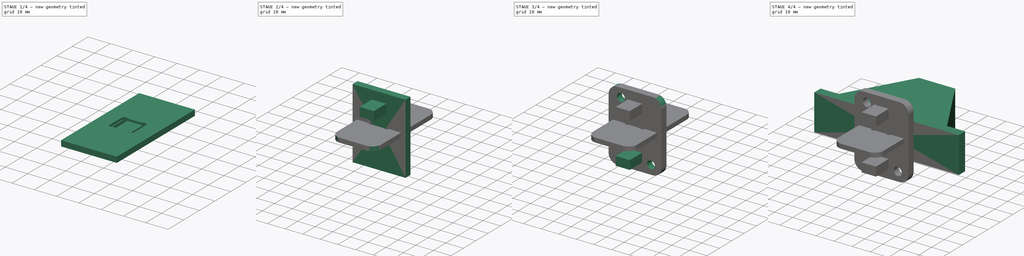
[diagram: build sequence overview — one tinted view per stage of 4, left to right]
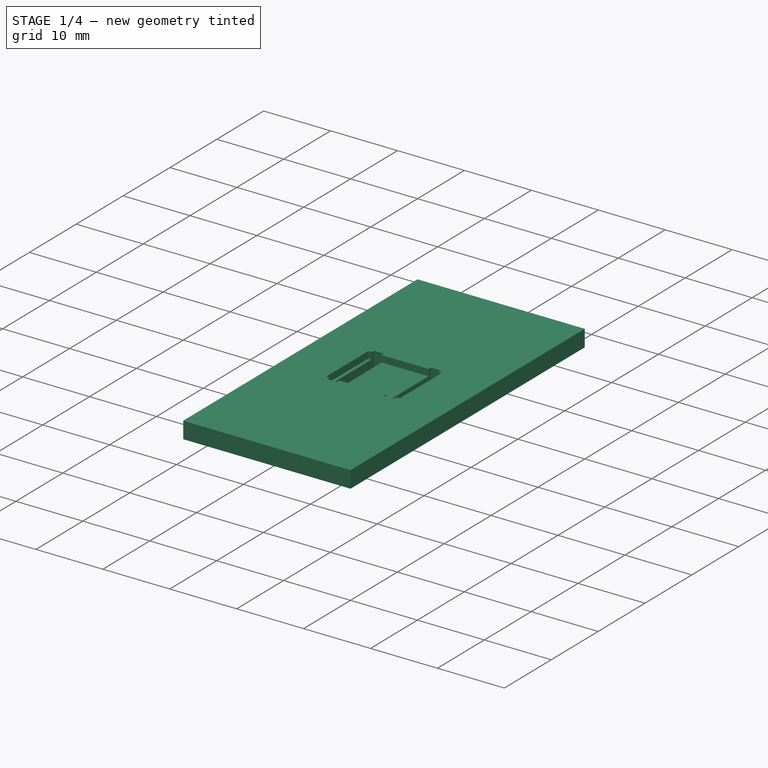
[diagram: stage 1 of 4 — iso view after this stage's code; geometry added in this stage tinted green]
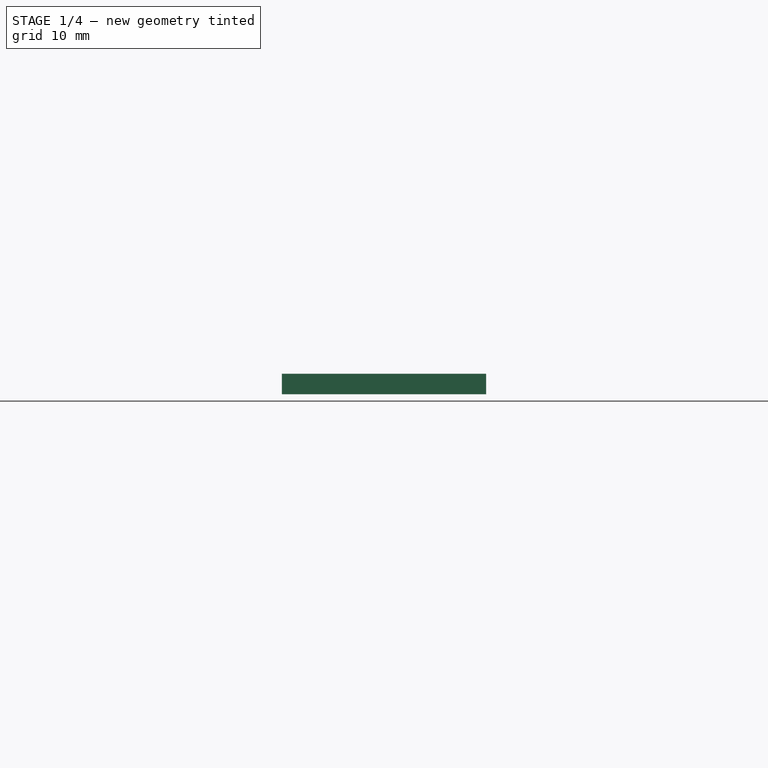
[diagram: stage 1 of 4 — front view after this stage's code; geometry added in this stage tinted green]
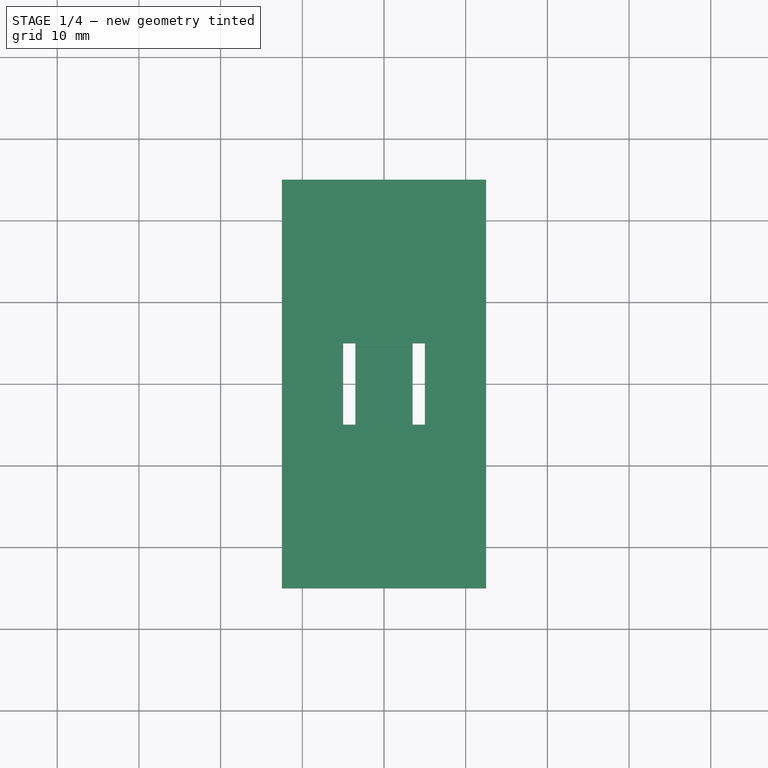
[diagram: stage 1 of 4 — top view after this stage's code; geometry added in this stage tinted green]
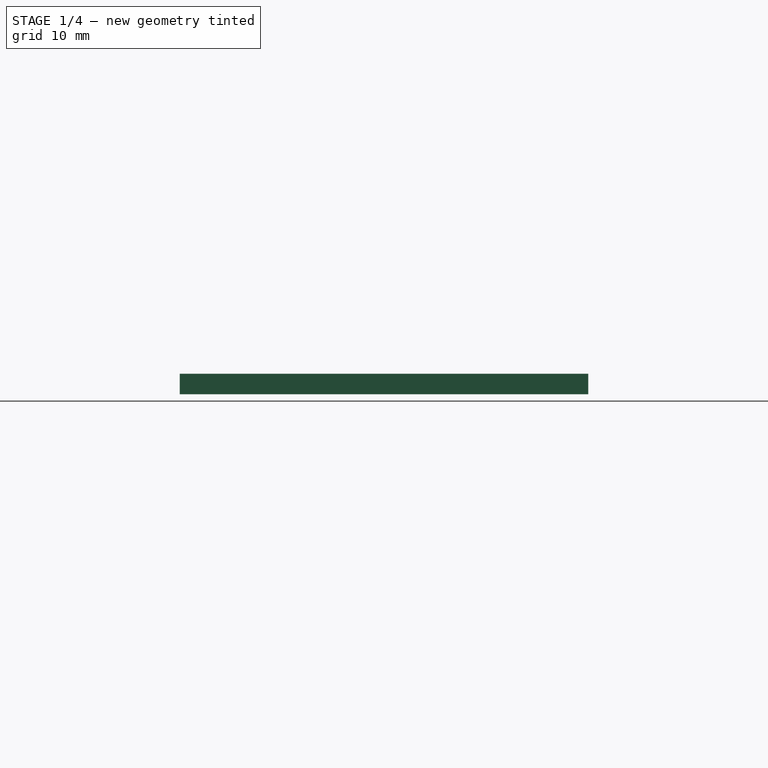
[diagram: stage 1 of 4 — right view after this stage's code; geometry added in this stage tinted green]
FCSTD DOCUMENT  (FreeCAD 0.19R24267 +99 (Git))
Label: windowOpener
License: All rights reserved
LicenseURL: http://en.wikipedia.org/wiki/All_rights_reserved
objects: Sketcher::SketchObject×7, PartDesign::Pad×4, PartDesign::Pocket×3, PartDesign::Body×3, PartDesign::Fillet×2, PartDesign::Mirrored×1
note: 29 computed .brp shape members not serialized (recipe doc carries the construction recipe); baked Part::Feature solids carry a one-line shape summary decoded from their .brp

FEATURE [PartDesign::Body] Body002  label="windowOpener_mounitngAdapter"
  Group = -> [Sketch005,Pad004,Sketch007,Pad003,Mirrored001,Sketch006,Pocket002,Fillet001]
  Origin = -> Origin002
  Placement = pos=(0,44,0) rot=(0,0,1;0rad)
  Tip = -> Fillet001
FEATURE [Sketcher::SketchObject] Sketch008
  FullyConstrained = true
  MapMode = 5
  Support = -> [XY_Plane003]
  sketch-geometry (12):
    g0: LineSegment StartX=-12.5 StartY=25 StartZ=0 EndX=12.5 EndY=25 EndZ=0
    g1: LineSegment StartX=12.5 StartY=25 StartZ=0 EndX=12.5 EndY=-25 EndZ=0
    g2: LineSegment StartX=12.5 StartY=-25 StartZ=0 EndX=-12.5 EndY=-25 EndZ=0
    g3: LineSegment StartX=-12.5 StartY=-25 StartZ=0 EndX=-12.5 EndY=25 EndZ=0
    g4: LineSegment StartX=-5 StartY=-5 StartZ=0 EndX=-3.5 EndY=-5 EndZ=0
    g5: LineSegment StartX=-3.5 StartY=-5 StartZ=0 EndX=-3.5 EndY=5 EndZ=0
    g6: LineSegment StartX=-3.5 StartY=5 StartZ=0 EndX=-5 EndY=5 EndZ=0
    g7: LineSegment StartX=-5 StartY=5 StartZ=0 EndX=-5 EndY=-5 EndZ=0
    g8: LineSegment StartX=3.5 StartY=5 StartZ=0 EndX=5 EndY=5 EndZ=0
    g9: LineSegment StartX=5 StartY=5 StartZ=0 EndX=5 EndY=-5 EndZ=0
    g10: LineSegment StartX=5 StartY=-5 StartZ=0 EndX=3.5 EndY=-5 EndZ=0
    g11: LineSegment StartX=3.5 StartY=-5 StartZ=0 EndX=3.5 EndY=5 EndZ=0
  constraints (32):
    c: Coincident(g0,g1)
    c: Coincident(g1,g2)
    c: Coincident(g2,g3)
    c: Coincident(g3,g0)
    c: Horizontal(g0)
    c: Horizontal(g2)
    c: Vertical(g1)
    c: Vertical(g3)
    c: Symmetric(g1,g0,g-1)
    c: DistanceY(g1,g1) = 50
    c: DistanceX(g0,g0) = 25
    c: Coincident(g4,g5)
    c: Coincident(g5,g6)
    c: Coincident(g6,g7)
    c: Coincident(g7,g4)
    c: Horizontal(g4)
    c: Horizontal(g6)
    c: Vertical(g7)
    c: Coincident(g8,g9)
    c: Coincident(g9,g10)
    c: Coincident(g10,g11)
    c: Coincident(g11,g8)
    c: Horizontal(g8)
    c: Horizontal(g10)
    c: Vertical(g9)
    c: Symmetric(g4,g5,g-1)
    c: Symmetric(g8,g10,g-1)
    c: DistanceY(g4,g8) = 10
    c: Equal(g8,g6)
    c: Symmetric(g4,g9,g-2)
    c: DistanceX(g6,g6) = 1.5
    c: DistanceX(g6,g8) = 10
FEATURE [PartDesign::Pad] Pad005
  Direction = (1,1,1)
  Length = 2.5
  Length2 = 100
  Profile = -> Sketch008
  Type = 0
FEATURE [Sketcher::SketchObject] Sketch009
  FullyConstrained = true
  MapMode = 5
  Placement = pos=(0,0,2.5) rot=(0,0,1;0rad)
  Support = -> [Pad005]
  sketch-geometry (4):
    g0: LineSegment StartX=-5.5 StartY=4.5 StartZ=0 EndX=5.5 EndY=4.5 EndZ=0
    g1: LineSegment StartX=5.5 StartY=4.5 StartZ=0 EndX=5.5 EndY=-4.5 EndZ=0
    g2: LineSegment StartX=5.5 StartY=-4.5 StartZ=0 EndX=-5.5 EndY=-4.5 EndZ=0
    g3: LineSegment StartX=-5.5 StartY=-4.5 StartZ=0 EndX=-5.5 EndY=4.5 EndZ=0
  constraints (11):
    c: Coincident(g0,g1)
    c: Coincident(g1,g2)
    c: Coincident(g2,g3)
    c: Coincident(g3,g0)
    c: Horizontal(g0)
    c: Horizontal(g2)
    c: Vertical(g1)
    c: Vertical(g3)
    c: Symmetric(g1,g0,g-1)
    c: DistanceX(g0,g0) = 11
    c: DistanceY(g1,g1) = 9
FEATURE [PartDesign::Pocket] Pocket003
  BaseFeature = -> Pad005
  Length = 1
  Length2 = 100
  Profile = -> Sketch009
  Type = 0
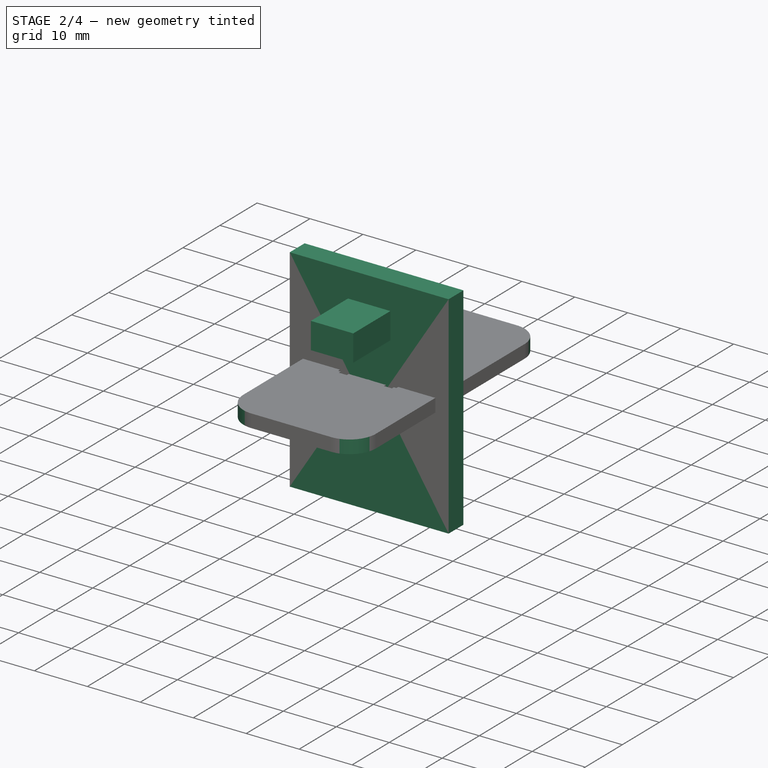
[diagram: stage 2 of 4 — iso view after this stage's code; geometry added in this stage tinted green]
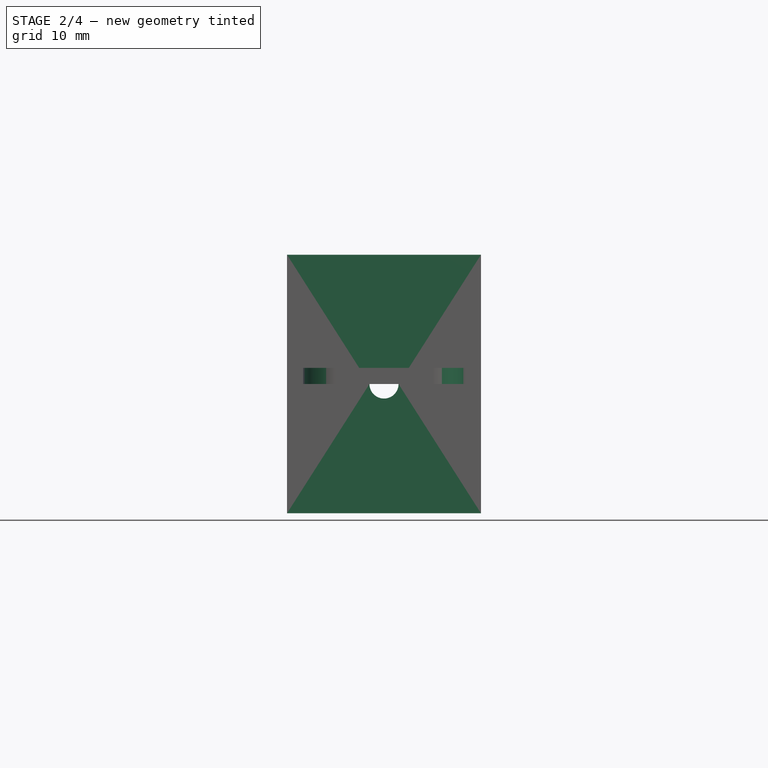
[diagram: stage 2 of 4 — front view after this stage's code; geometry added in this stage tinted green]
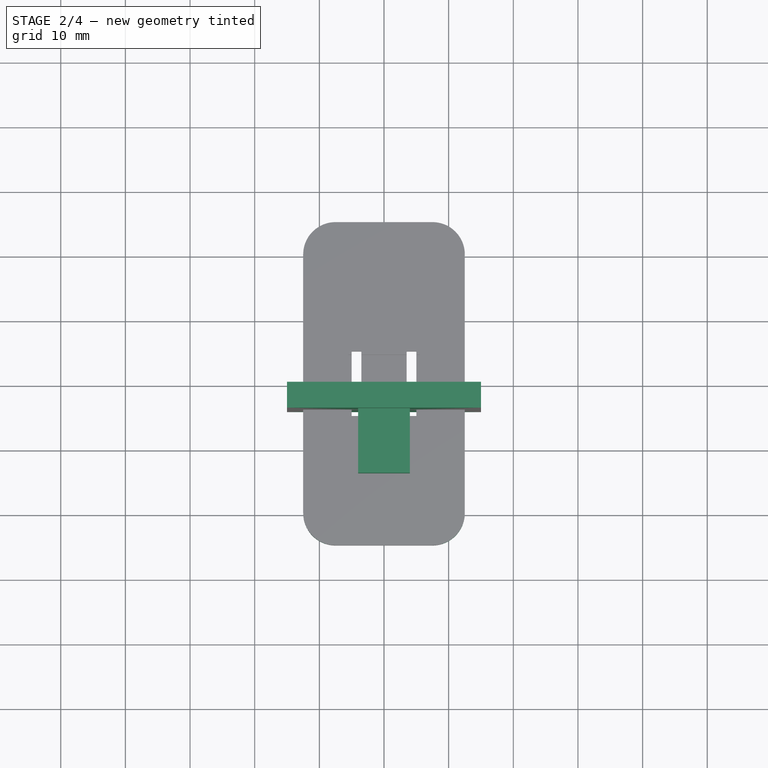
[diagram: stage 2 of 4 — top view after this stage's code; geometry added in this stage tinted green]
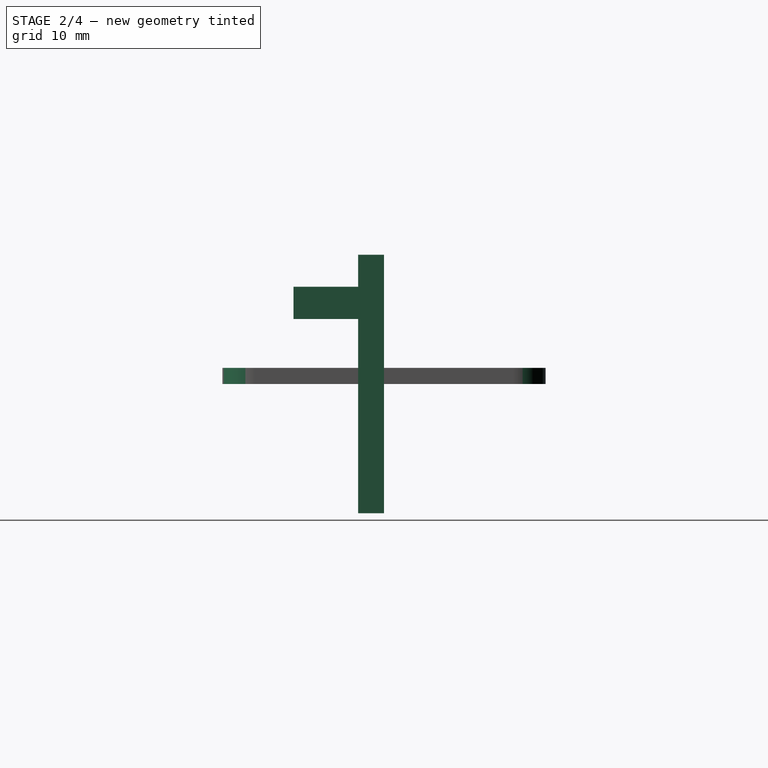
[diagram: stage 2 of 4 — right view after this stage's code; geometry added in this stage tinted green]
FEATURE [PartDesign::Body] Body  label="windowOpener_brace"
  Group = -> [Sketch,Pad,Sketch001,Pocket]
  Origin = -> Origin
  Tip = -> Pocket
FEATURE [Sketcher::SketchObject] Sketch005
  FullyConstrained = true
  MapMode = 5
  Placement = pos=(0,0,0) rot=(1,0,0;1.5708rad)
  Support = -> [XZ_Plane002]
  sketch-geometry (5):
    g0: LineSegment StartX=-15 StartY=20 StartZ=0 EndX=15 EndY=20 EndZ=0
    g1: LineSegment StartX=15 StartY=20 StartZ=0 EndX=15 EndY=-20 EndZ=0
    g2: LineSegment StartX=15 StartY=-20 StartZ=0 EndX=-15 EndY=-20 EndZ=0
    g3: LineSegment StartX=-15 StartY=-20 StartZ=0 EndX=-15 EndY=20 EndZ=0
    g4: Circle CenterX=0 CenterY=0 CenterZ=0 NormalX=0 NormalY=0 NormalZ=1 AngleXU=0 Radius=2.25
  constraints (13):
    c: Coincident(g0,g1)
    c: Coincident(g1,g2)
    c: Coincident(g2,g3)
    c: Coincident(g3,g0)
    c: Horizontal(g0)
    c: Horizontal(g2)
    c: Vertical(g1)
    c: Vertical(g3)
    c: Symmetric(g0,g1,g-1)
    c: DistanceX(g0,g0) = 30
    c: DistanceY(g1,g1) = 40
    c: Coincident(g4,g-1)
    c: Radius(g4) = 2.25
FEATURE [PartDesign::Pad] Pad004
  Direction = (1,1,1)
  Length = 4
  Length2 = 100
  Placement = pos=(0,0,0) rot=(1,0,0;1.5708rad)
  Profile = -> Sketch005
  Type = 0
FEATURE [Sketcher::SketchObject] Sketch007
  FullyConstrained = true
  MapMode = 5
  Placement = pos=(0,-4,0) rot=(1,0,0;1.5708rad)
  Support = -> [Pad004]
  sketch-geometry (4):
    g0: LineSegment StartX=-4 StartY=15.05 StartZ=0 EndX=4 EndY=15.05 EndZ=0
    g1: LineSegment StartX=4 StartY=15.05 StartZ=0 EndX=4 EndY=10.05 EndZ=0
    g2: LineSegment StartX=4 StartY=10.05 StartZ=0 EndX=-4 EndY=10.05 EndZ=0
    g3: LineSegment StartX=-4 StartY=10.05 StartZ=0 EndX=-4 EndY=15.05 EndZ=0
  constraints (11):
    c: Coincident(g0,g1)
    c: Coincident(g1,g2)
    c: Coincident(g2,g3)
    c: Coincident(g3,g0)
    c: Horizontal(g2)
    c: Vertical(g1)
    c: Vertical(g3)
    c: Symmetric(g0,g0,g-2)
    c: DistanceY(g-1,g1) = 10.05
    c: DistanceY(g1,g1) = 5
    c: DistanceX(g0,g0) = 8
FEATURE [PartDesign::Pad] Pad003
  BaseFeature = -> Pad004
  Direction = (1,1,1)
  Length = 10
  Length2 = 100
  Placement = pos=(0,0,0) rot=(1,0,0;1.5708rad)
  Profile = -> Sketch007
  Type = 0
FEATURE [PartDesign::Fillet] Fillet
  Base = -> Pocket003 [Edge5,Edge8,Edge2,Edge1]
  BaseFeature = -> Pocket003
  Radius = 5
  SupportTransform = false
FEATURE [PartDesign::Body] Body003  label="windowOpener_windowAttachment"
  Group = -> [Sketch008,Pad005,Sketch009,Pocket003,Fillet]
  Origin = -> Origin003
  Placement = pos=(0,237,5.26e-14) rot=(-0.57735,-0.57735,0.57735;4.18879rad)
  Tip = -> Fillet
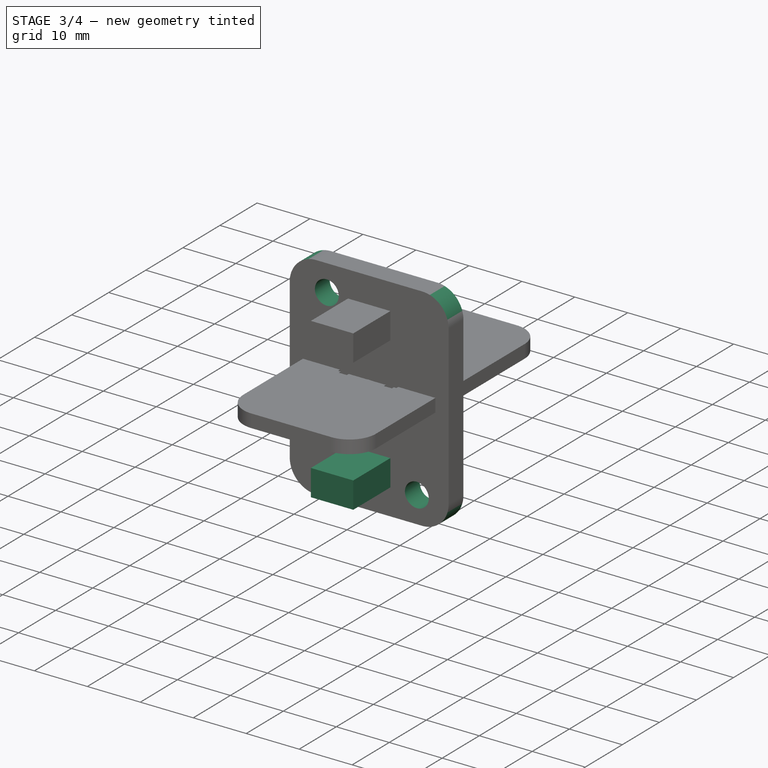
[diagram: stage 3 of 4 — iso view after this stage's code; geometry added in this stage tinted green]
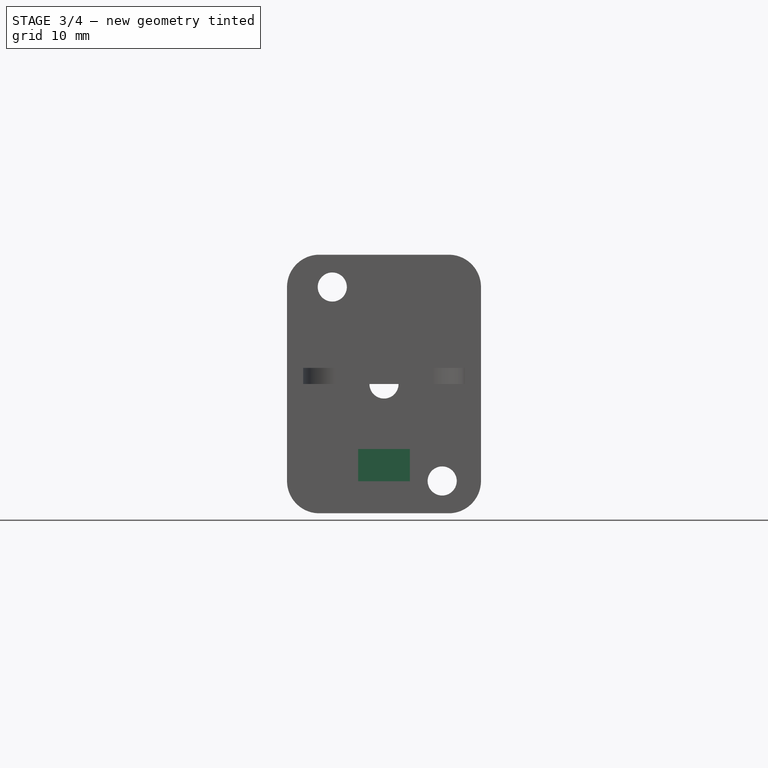
[diagram: stage 3 of 4 — front view after this stage's code; geometry added in this stage tinted green]
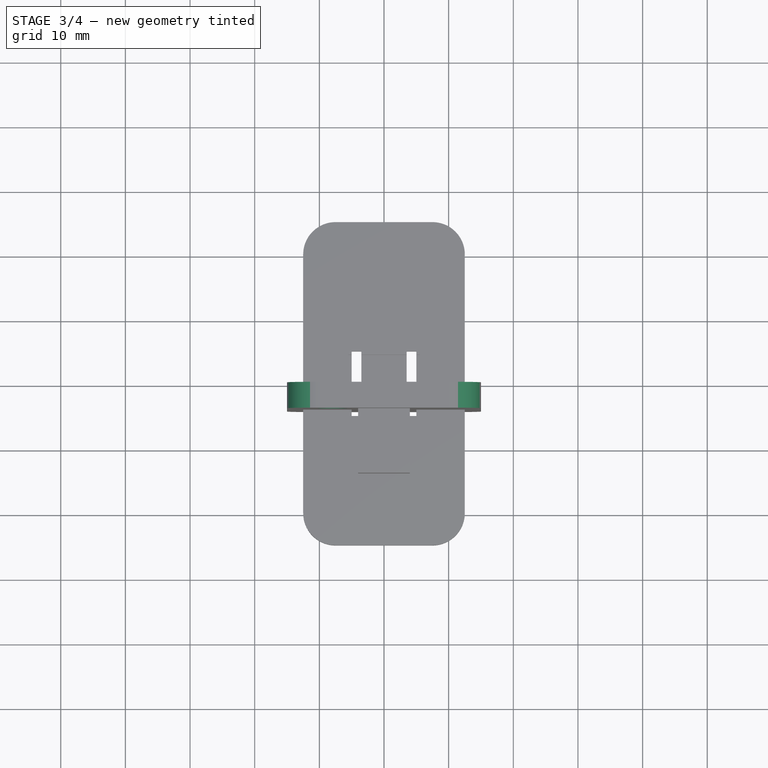
[diagram: stage 3 of 4 — top view after this stage's code; geometry added in this stage tinted green]
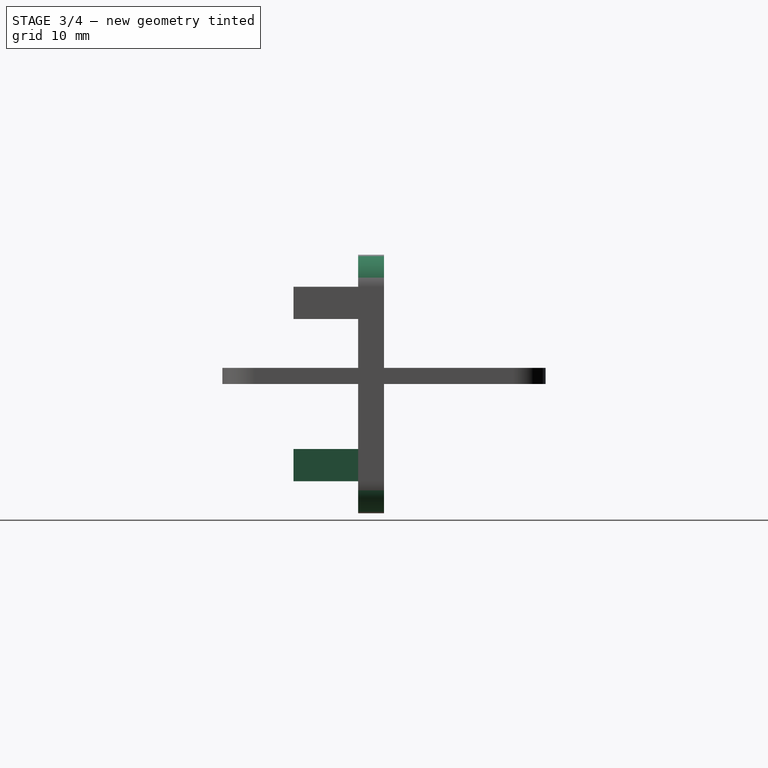
[diagram: stage 3 of 4 — right view after this stage's code; geometry added in this stage tinted green]
FEATURE [PartDesign::Mirrored] Mirrored001
  BaseFeature = -> Pad003
  MirrorPlane = -> XY_Plane002
  Originals = -> [Pad003]
  Placement = pos=(0,0,0) rot=(1,0,0;1.5708rad)
FEATURE [Sketcher::SketchObject] Sketch006
  FullyConstrained = true
  MapMode = 5
  Placement = pos=(0,0,0) rot=(-1,0,0;1.5708rad)
  Support = -> [Mirrored001]
  sketch-geometry (2):
    g0: Circle CenterX=-8 CenterY=-15 CenterZ=0 NormalX=0 NormalY=0 NormalZ=1 AngleXU=0 Radius=2.25
    g1: Circle CenterX=9 CenterY=15 CenterZ=0 NormalX=0 NormalY=0 NormalZ=1 AngleXU=0 Radius=2.25
  constraints (6):
    c: Radius(g0) = 2.25
    c: DistanceX(g0,g-1) = 8
    c: DistanceY(g-1,g0) = -15
    c: DistanceY(g-1,g1) = 15
    c: DistanceX(g-1,g1) = 9
    c: Radius(g1) = 2.25
FEATURE [PartDesign::Pocket] Pocket002
  BaseFeature = -> Mirrored001
  Length = 5
  Length2 = 100
  Placement = pos=(0,0,0) rot=(1,0,0;1.5708rad)
  Profile = -> Sketch006
  Type = 1
FEATURE [PartDesign::Fillet] Fillet001
  Base = -> Pocket002 [Edge5,Edge8,Edge1,Edge2]
  BaseFeature = -> Pocket002
  Placement = pos=(0,0,0) rot=(1,0,0;1.5708rad)
  Radius = 5
  SupportTransform = false
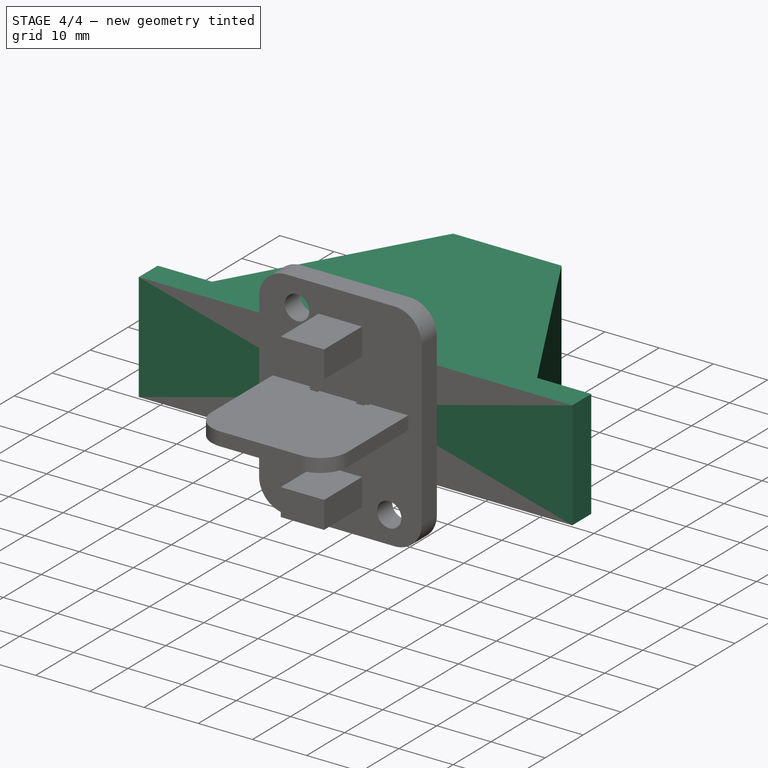
[diagram: stage 4 of 4 — iso view after this stage's code; geometry added in this stage tinted green]
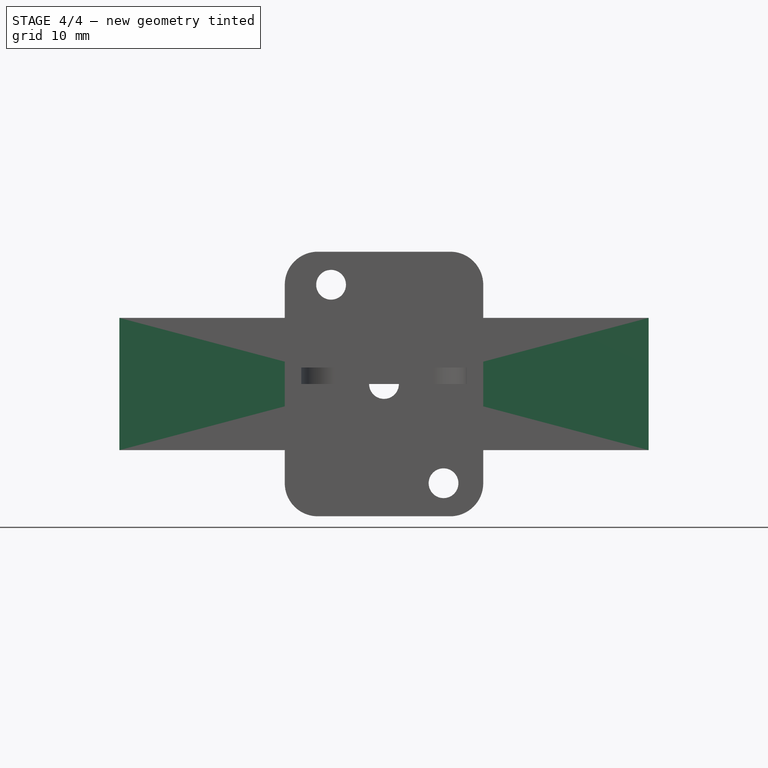
[diagram: stage 4 of 4 — front view after this stage's code; geometry added in this stage tinted green]
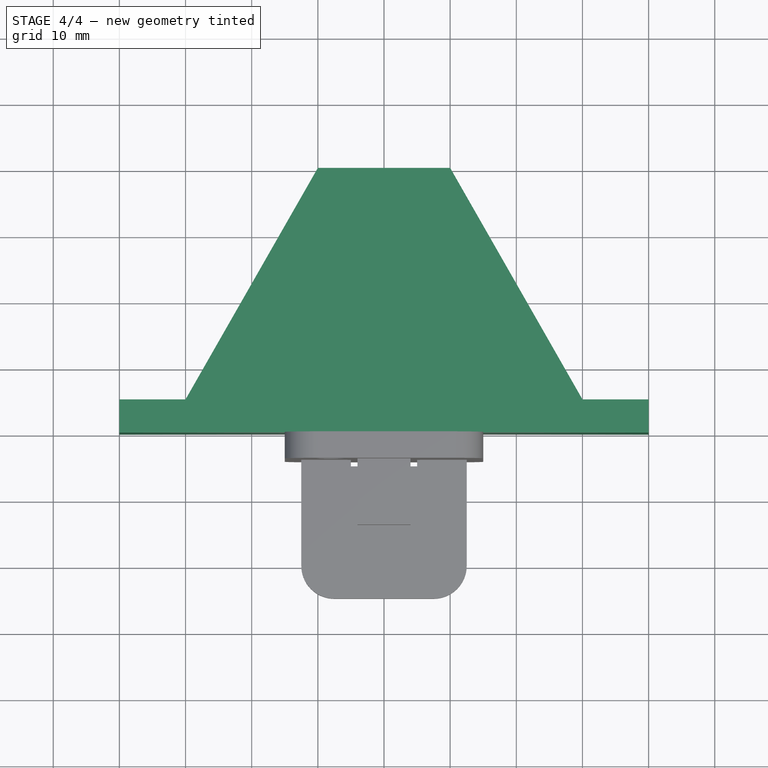
[diagram: stage 4 of 4 — top view after this stage's code; geometry added in this stage tinted green]
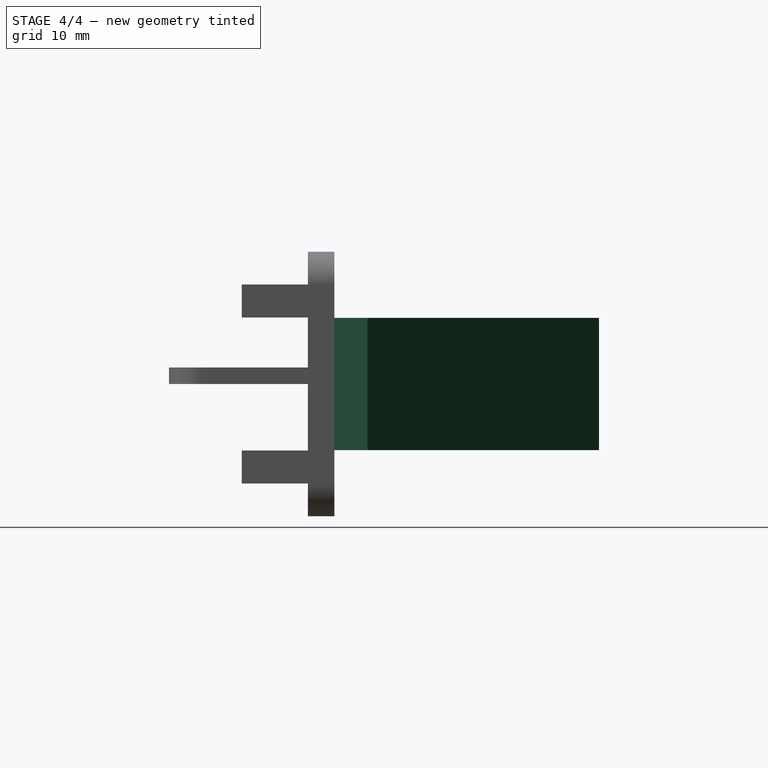
[diagram: stage 4 of 4 — right view after this stage's code; geometry added in this stage tinted green]
FEATURE [Sketcher::SketchObject] Sketch
  FullyConstrained = true
  MapMode = 5
  Support = -> [XY_Plane]
  sketch-geometry (8):
    g0: LineSegment StartX=-40 StartY=0 StartZ=0 EndX=40 EndY=0 EndZ=0
    g1: LineSegment StartX=40 StartY=0 StartZ=0 EndX=40 EndY=5 EndZ=0
    g2: LineSegment StartX=40 StartY=5 StartZ=0 EndX=30 EndY=5 EndZ=0
    g3: LineSegment StartX=30 StartY=5 StartZ=0 EndX=10 EndY=40 EndZ=0
    g4: LineSegment StartX=10 StartY=40 StartZ=0 EndX=-10 EndY=40 EndZ=0
    g5: LineSegment StartX=-10 StartY=40 StartZ=0 EndX=-30 EndY=5 EndZ=0
    g6: LineSegment StartX=-30 StartY=5 StartZ=0 EndX=-40 EndY=5 EndZ=0
    g7: LineSegment StartX=-40 StartY=5 StartZ=0 EndX=-40 EndY=0 EndZ=0
  constraints (21):
    c: PointOnObject(g0,g-1)
    c: Coincident(g0,g1)
    c: Coincident(g1,g2)
    c: Horizontal(g2)
    c: Coincident(g2,g3)
    c: Coincident(g3,g4)
    c: Coincident(g4,g5)
    c: Coincident(g5,g6)
    c: Horizontal(g6)
    c: Coincident(g6,g7)
    c: Coincident(g7,g0)
    c: Vertical(g7)
    c: Vertical(g1)
    c: Symmetric(g4,g3,g-2)
    c: Symmetric(g2,g5,g-2)
    c: Symmetric(g0,g0,g-2)
    c: DistanceY(g1,g1) = 5
    c: DistanceY(g-1,g4) = 40
    c: DistanceX(g0,g0) = 80
    c: DistanceX(g6,g6) = 10
    c: DistanceX(g4,g4) = 20
FEATURE [PartDesign::Pad] Pad
  Direction = (1,1,1)
  Length = 20
  Length2 = 100
  Midplane = true
  Profile = -> Sketch
  Type = 0
FEATURE [Sketcher::SketchObject] Sketch001
  FullyConstrained = true
  MapMode = 5
  Placement = pos=(0,40,0) rot=(0,0.707107,0.707107;3.14159rad)
  Support = -> [Pad]
  sketch-geometry (1):
    g0: Circle CenterX=0 CenterY=0 CenterZ=0 NormalX=0 NormalY=0 NormalZ=1 AngleXU=0 Radius=2.25
  constraints (2):
    c: Coincident(g0,g-1)
    c: Radius(g0) = 2.25
FEATURE [PartDesign::Pocket] Pocket
  BaseFeature = -> Pad
  Length = 5
  Length2 = 100
  Profile = -> Sketch001
  Type = 1
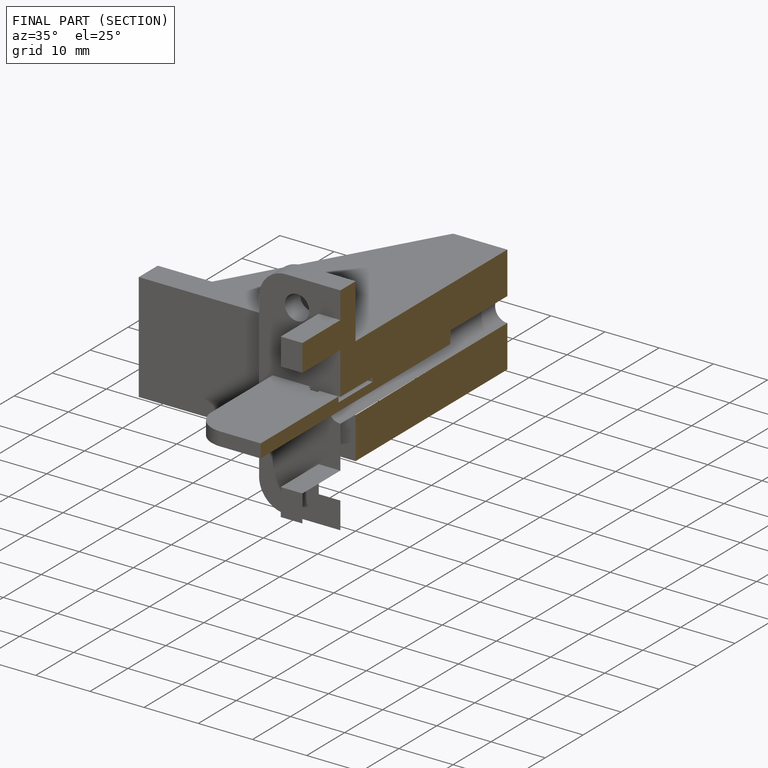
[diagram: finished part — half-section view (interior)]
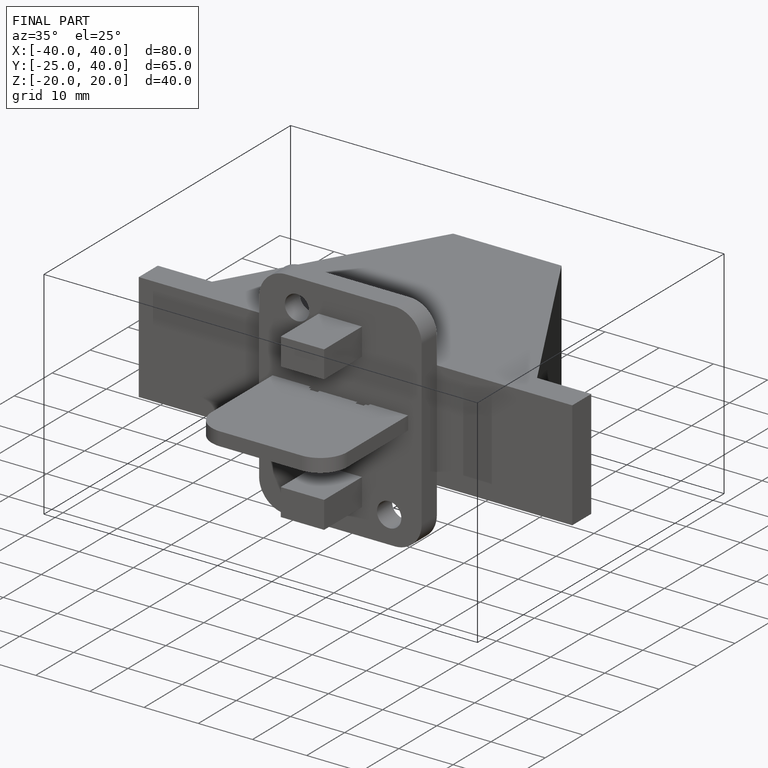
[diagram: finished part — iso view with bounding-box wireframe]
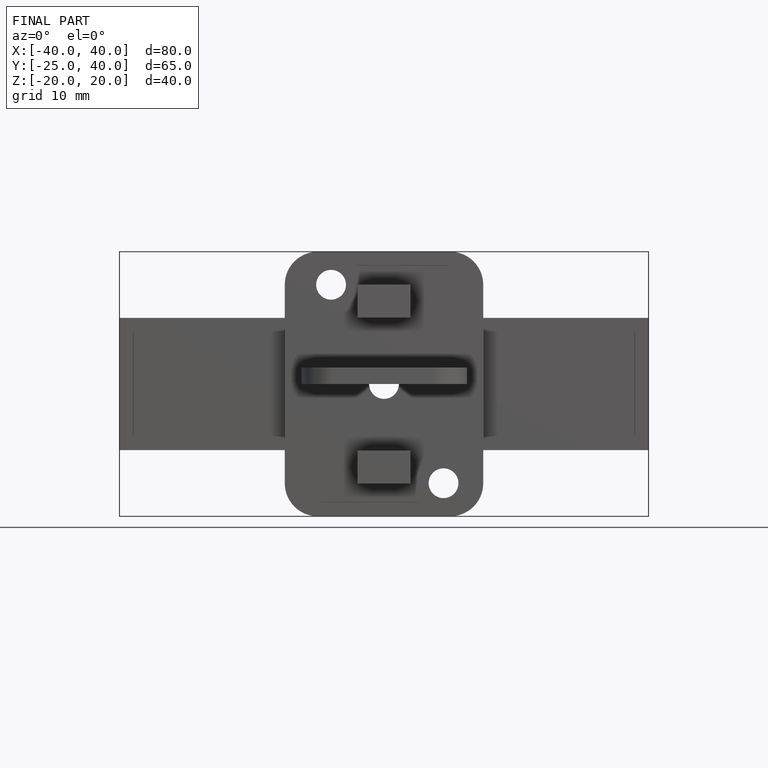
[diagram: finished part — front view with bounding-box wireframe]
